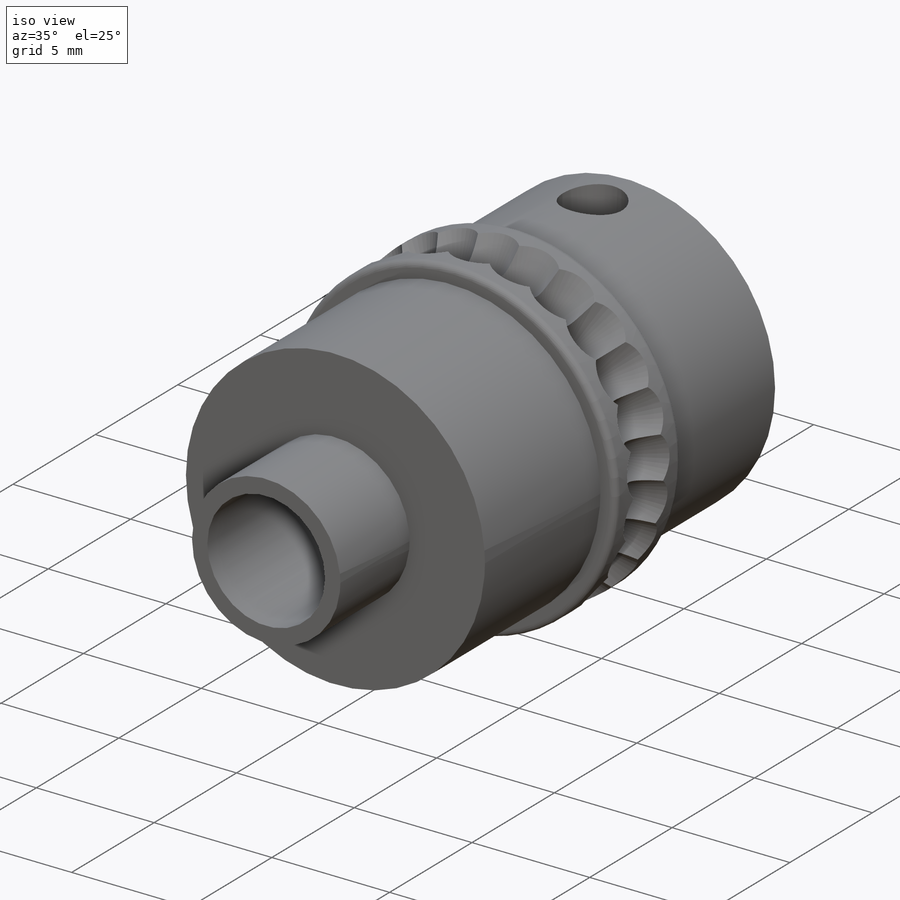
[diagram: iso view]
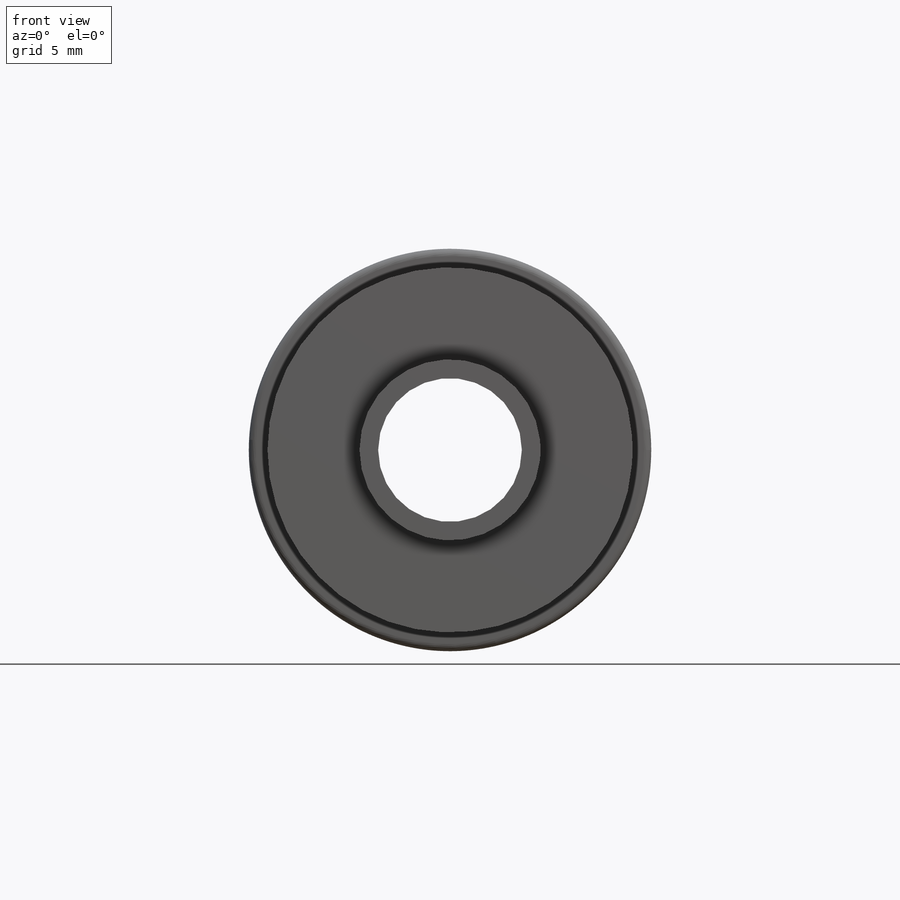
[diagram: front view]
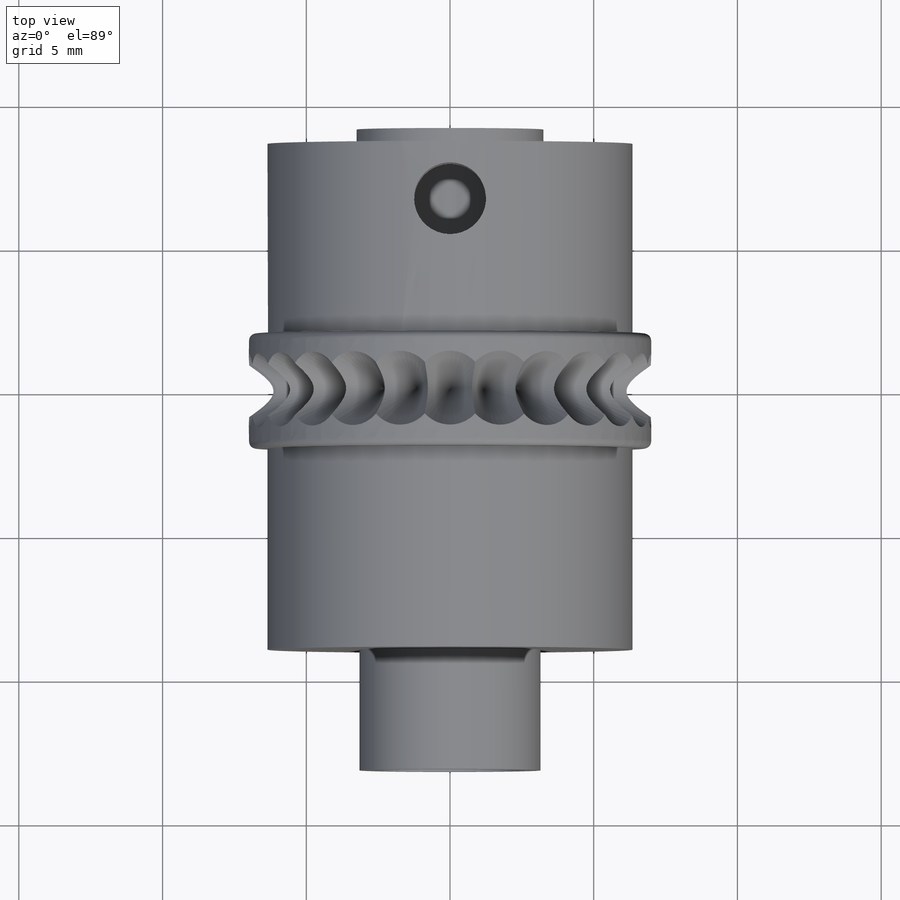
[diagram: top view]
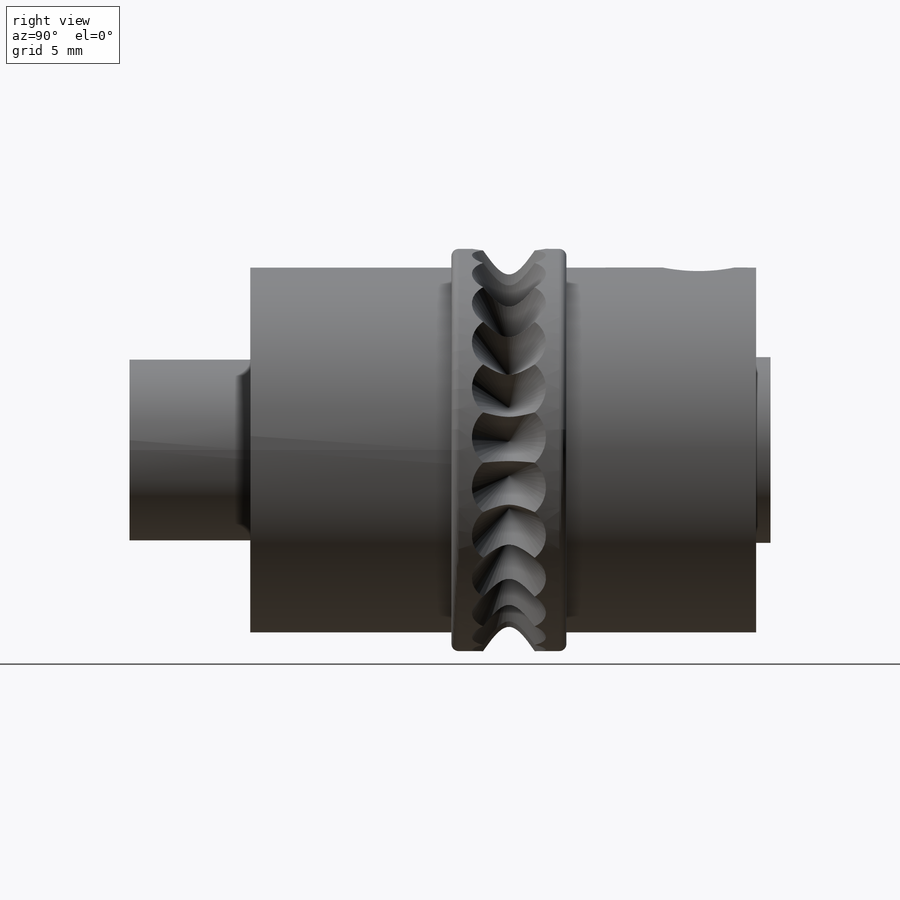
[diagram: right view]
SOLIDWORKS PART (.sldprt)
format: sldprt  version: not decoded by parser v0  size: 842,752 bytes
history: native  units: mm
features: sketch x9, pattern_circular x5, extrude x4, cut_extrude x2, material x1, cut_revolve x1, hole x1, thread x1, fillet x1 (+13 scaffold rows collapsed)
feature tree (38):
  scaffold x13  (default folders/planes/origin — collapsed)
  material  "Stainless Steel (ferritic)"
  sketch  "Sketch1"  dims[D1=15.0mm D2=5.0mm]
  extrude  "Boss-Extrude1"  Depth=4mm
  sketch  "Sketch2"  dims[c1.D1=~3.056804mm c2.D1=~807.95073mm c2.D2=5.5mm c3.D1=4.77mm]
  cut_revolve  "Cut-Revolve2"  [1 undecoded]
  pattern_circular  "CirPattern1"  Count=20  [1 undecoded]
  sketch  "Sketch3"  dims[D1=12.7mm]
  extrude  "Boss-Extrude2"  Depth=7.1mm
  hole  "M3 Tapped Hole1"  Diameter=2.5mm Depth=7.5mm
  sketch  "Sketch6"  dims[D1=2.5mm]
  sketch  "Sketch7"  dims[hole-wizard template sketch: 54 standard entries collapsed; hole parameters kept: c17.D1=25.4mm c17.D2=101.6mm c17.D3=31.75mm c17.D4=~3.666174mm c18.D4=~2094.395102mm c18.Thru Tap Drill Dia.=2.5mm c18.Thru Tap Drill Depth=7.5mm]
  thread  "Hole Thread1"  Diameter=3mm  [1 undecoded]
  pattern_circular  "CirPattern2"  Count=50  [1 undecoded]
  pattern_circular  "CirPattern3"  Count=60  [1 undecoded]
  pattern_circular  "CirPattern4"  Count=30  [1 undecoded]
  pattern_circular  "CirPattern5"  Count=25  [1 undecoded]
  sketch  "Sketch9"  dims[D1=14.0mm]
  cut_extrude  "Cut-Extrude1"  [1 undecoded]
  sketch  "Sketch10"  dims[D1=6.5mm]
  cut_extrude  "Cut-Extrude2"  Depth=0.5mm
  sketch  "Sketch11"  dims[D1=6.3mm]
  extrude  "Boss-Extrude3"  Depth=11.2mm
  sketch  "Sketch12"
  extrude  "Boss-Extrude4"  Depth=7mm
  fillet  "Fillet1"  Radius=0.25mm
decode coverage: 21 of 24 modeling features carry decoded parameters
note: ~ marks probable driven/reference dimensions
note: 8 parameter values undecoded
note: suppression state not decoded; provenance and decode notes live in map.json
